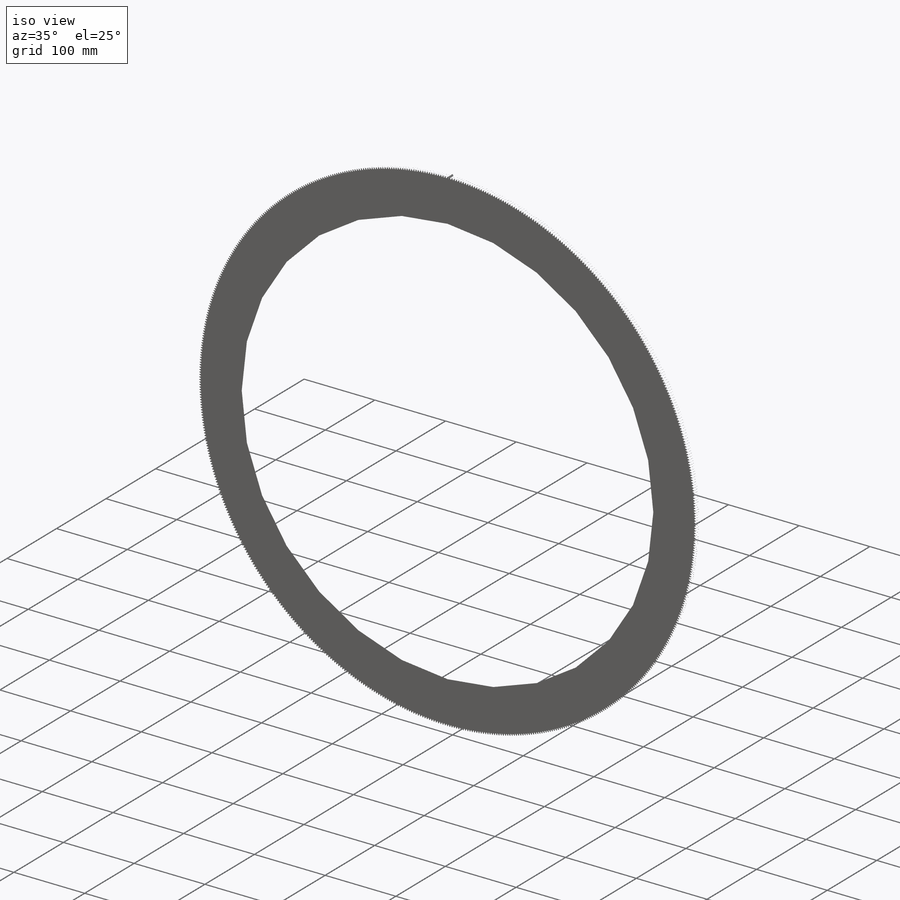
[diagram: iso view]
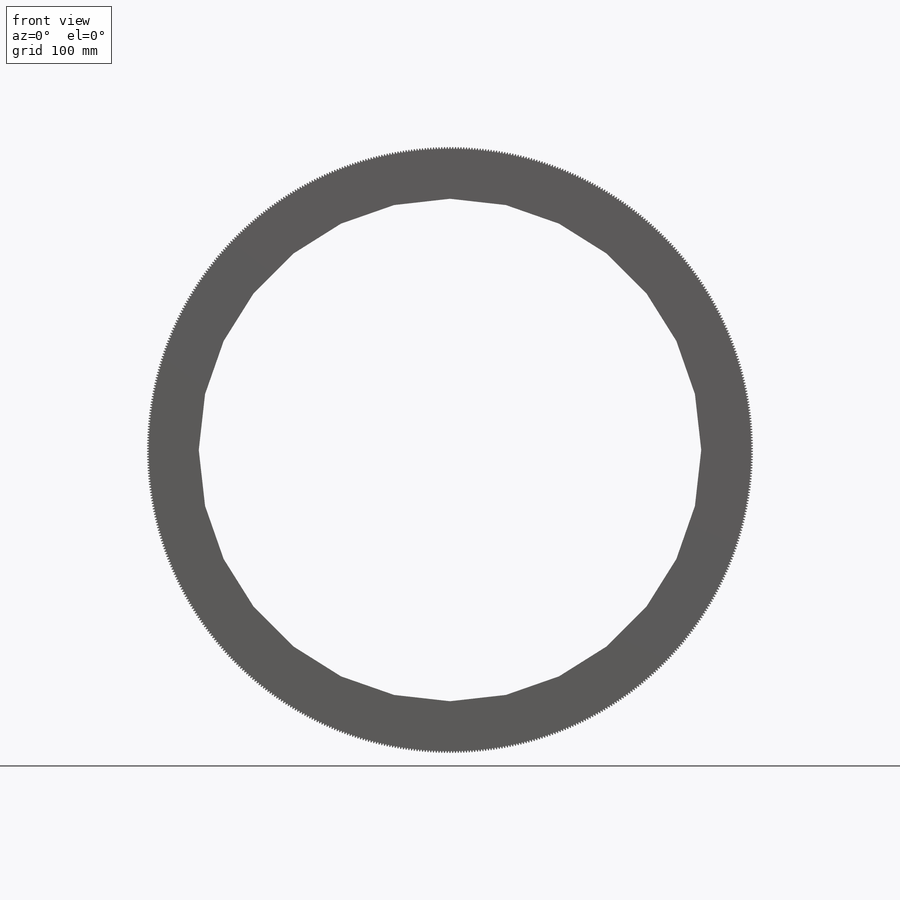
[diagram: front view]
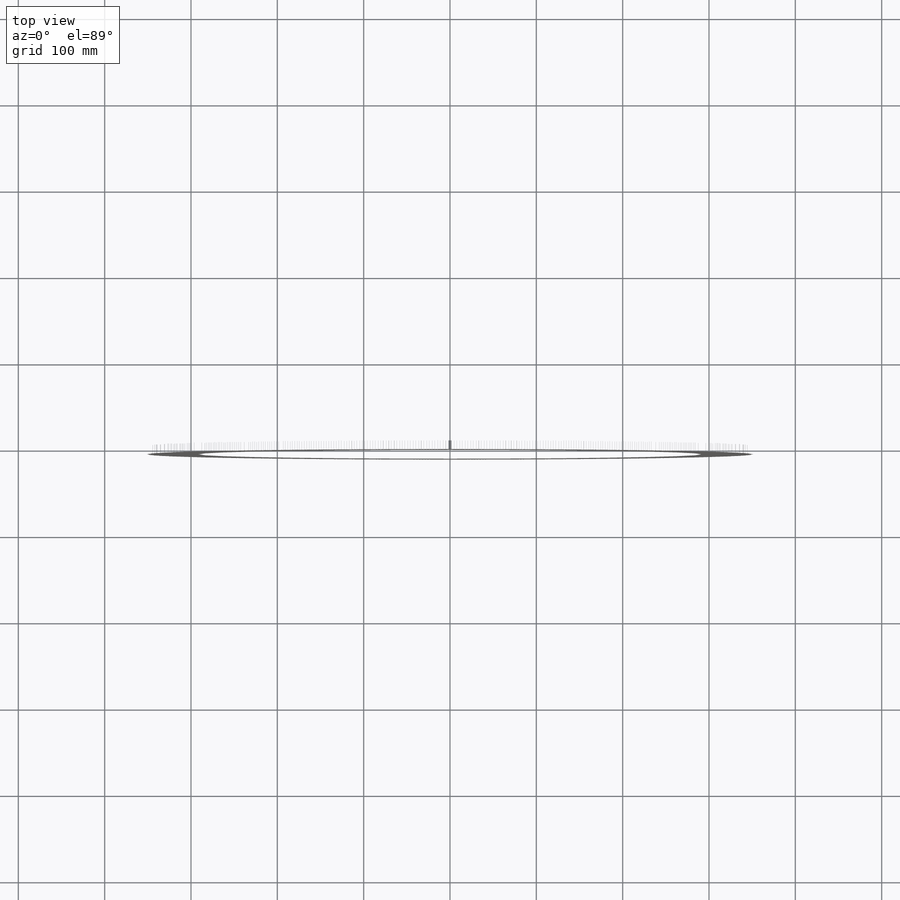
[diagram: top view]
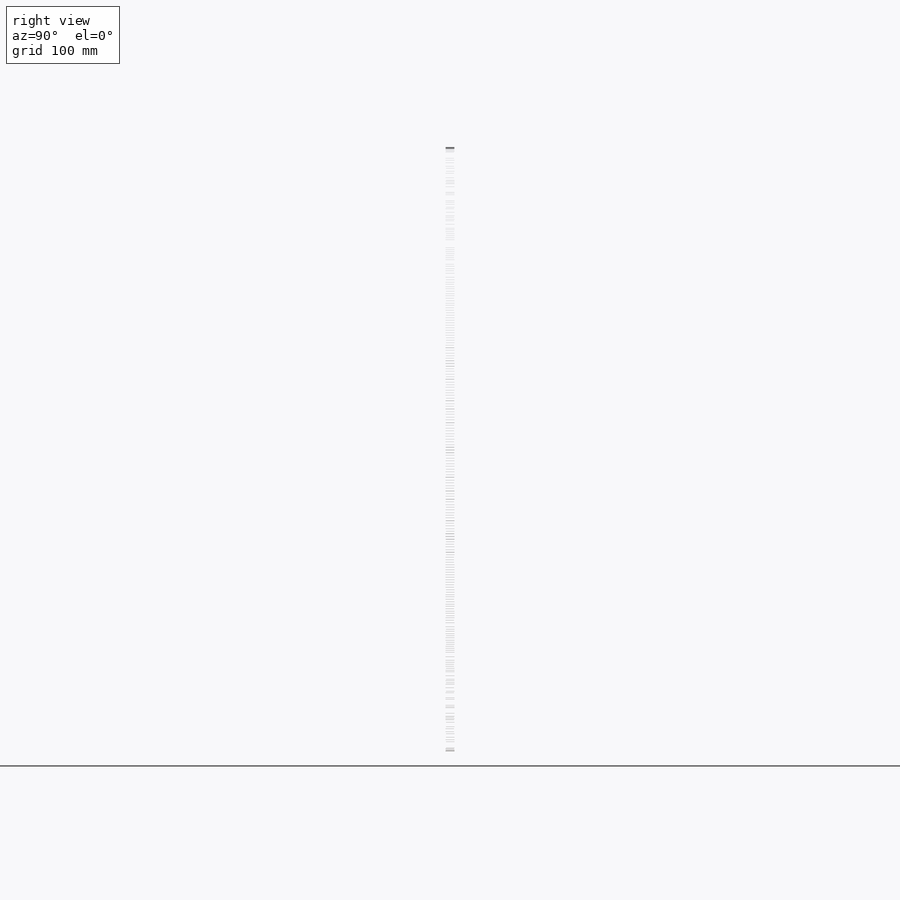
[diagram: right view]
SOLIDWORKS PART (.sldprt)
format: sldprt  version: not decoded by parser v0  size: 10,977,792 bytes
history: native  units: mm
features: sketch x5, pattern_circular x3, cut_extrude x3, material x1, extrude x1, chamfer x1 + 1 further entry (+13 scaffold rows collapsed)
feature tree (28):
  scaffold x13  (default folders/planes/origin — collapsed)
  material  "Material <not specified>"
  "Design Table"
  sketch  "Pitch Diameter"  dims[D1=20.0mm]
  sketch  "Sketch1"  dims[c1.D1=14.0mm c1.D2=5.0mm c1.D3=14.0mm c1.D4=~22.241922mm c2.D1=~5.360874mm c2.D2=~9.467075mm c3.D1=0.0mm c3.D2=0.0mm c3.D3=~0.121488mm c3.D4=~0.241244mm c3.D5=~0.359279mm c3.D6=~0.475605mm c3.D7=~0.590233mm c3.D8=~0.703174mm c3.D9=~0.814442mm c3.D10=~0.924046mm c3.D11=~1.031999mm c3.D12=~1.138313mm c3.D13=~1.14098mm c3.D14=~1.143647mm c3.D15=~1.150574mm c3.D16=~1.159835mm c3.D17=~1.172607mm c3.D18=~1.190794mm c3.D19=~1.217469mm c3.D20=~1.257361mm c3.D21=~1.316619mm c3.D22=~1.399597mm c3.D23=~1.501055mm c3.D24=0.0mm c3.D25=~352.110801mm c3.D26=~351.791741mm c3.D27=~351.474635mm c3.D28=~351.159491mm c3.D29=~350.846316mm c3.D30=~350.535116mm c3.D31=~350.225898mm c3.D32=~349.91867mm c3.D33=~349.613438mm c3.D34=~349.310209mm c3.D35=~349.00899mm c3.D36=~349.001814mm c3.D37=~348.994639mm c3.D38=~348.978044mm c3.D39=~348.958561mm c3.D40=~348.935377mm c3.D41=~348.907563mm c3.D42=~348.874325mm c3.D43=~348.835821mm c3.D44=~348.795109mm c3.D45=~348.760935mm c3.D46=~348.74677mm]
  extrude  "Tooth"  Depth=10mm
  pattern_circular  "CirPattern1"  Count=70 Angle=36deg
  pattern_circular  "CirPattern2"  Count=10 Angle=324deg
  sketch  "Sketch6"  dims[D1=702.0mm]
  cut_extrude  "Addendum"  [1 undecoded]
  sketch  "Sketch7"  dims[D1=1.0mm]
  cut_extrude  "Cut-Extrude1"  Depth=10mm
  sketch  "Sketch9"  dims[D1=4.0mm]
  cut_extrude  "Cut-Extrude2"  Depth=10mm
  pattern_circular  "CirPattern3"  Count=12 Angle=360deg
  chamfer  "Chamfer1"  Distance=2.5mm Angle=45deg
decode coverage: 12 of 13 modeling features carry decoded parameters; 1 rows unclassified (native names shown)
note: ~ marks probable driven/reference dimensions
note: 1 parameter value undecoded
note: suppression state not decoded; provenance and decode notes live in map.json
